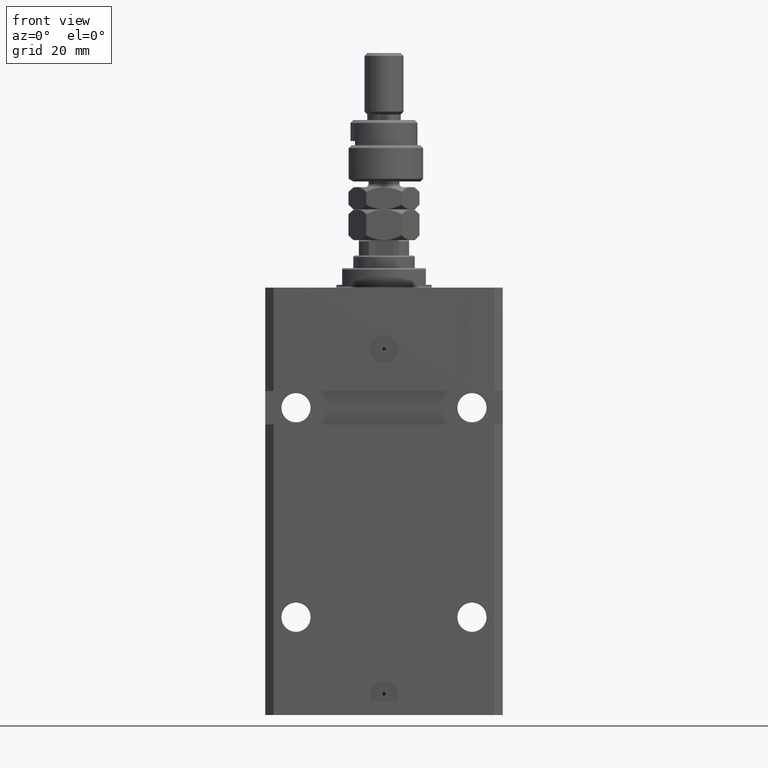
[diagram: clean part render]
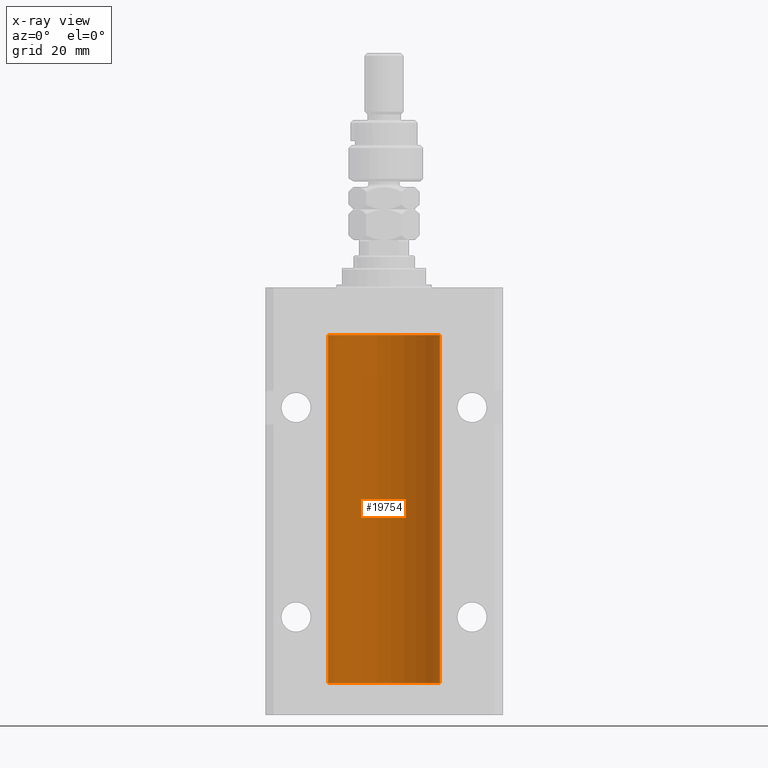
[diagram: x-ray — body ghosted, one internal face saturated and labeled with its STEP entity id]
A machine part, front view, then the same camera in x-ray: the body is ghosted and one INTERNAL B-rep face — a face not visible from any outside direction — is saturated and labeled: STEP entity #19754.
In plain terms, the highlighted cylindrical surface (partial cylindrical patch) has radius 20 mm, axis along (0, 0, 1).
Its self-contained STEP definition (entity closure, byte-faithful):
#153 = EDGE_LOOP ( 'NONE', ( #22952, #13435, #49968, #50057, #42618, #32042, #2248, #34435, #18991, #25160 ) ) ;
#396 = DIRECTION ( 'NONE',  ( 1.000000000000000000, 0.000000000000000000, 0.000000000000000000 ) ) ;
#1191 = CARTESIAN_POINT ( 'NONE',  ( 20.00000000000000000, -1.112928376255647276E-15, -24.62500000000000000 ) ) ;
#1295 = VERTEX_POINT ( 'NONE', #4157 ) ;
#2077 = CARTESIAN_POINT ( 'NONE',  ( 19.99256353007439913, 0.5574106582031163049, -24.32639035180115172 ) ) ;
#2248 = ORIENTED_EDGE ( 'NONE', *, *, #24458, .T. ) ;
#2695 = CIRCLE ( 'NONE', #35631, 20.00000000000000000 ) ;
#2964 = CARTESIAN_POINT ( 'NONE',  ( 19.99766100389833312, 0.3150982863324716665, -139.5459443824127561 ) ) ;
#4157 = CARTESIAN_POINT ( 'NONE',  ( 19.99023198964909298, 0.6250000000081508134, -23.99999999999910472 ) ) ;
#4684 = LINE ( 'NONE', #11923, #26144 ) ;
#4912 = B_SPLINE_CURVE_WITH_KNOTS ( 'NONE', 3,
 ( #14006, #29990, #33840, #10654, #9895, #37696 ),
 .UNSPECIFIED., .F., .F.,
 ( 4, 2, 4 ),
 ( 0.0009772989342736162956, 0.001465726722058837295, 0.001954154509844058078 ),
 .UNSPECIFIED. ) ;
#5544 = VERTEX_POINT ( 'NONE', #43630 ) ;
#6154 = CARTESIAN_POINT ( 'NONE',  ( 20.00000000000010303, 3.555666311577537537E-13, -138.3749999999966178 ) ) ;
#7422 = LINE ( 'NONE', #50728, #44775 ) ;
#8634 = CIRCLE ( 'NONE', #21792, 20.00000000000000000 ) ;
#8811 = DIRECTION ( 'NONE',  ( -0.000000000000000000, -0.000000000000000000, 1.000000000000000000 ) ) ;
#9522 = CARTESIAN_POINT ( 'NONE',  ( 19.99638788807192924, 0.3844440352705415509, -139.4994805898647883 ) ) ;
#9895 = CARTESIAN_POINT ( 'NONE',  ( 19.99999999999999645, 0.1631318418333148335, -23.37500000000016698 ) ) ;
#10330 = CARTESIAN_POINT ( 'NONE',  ( 19.99023198964934522, 0.6250000000002681189, -24.16311014829328840 ) ) ;
#10507 = DIRECTION ( 'NONE',  ( -0.000000000000000000, -0.000000000000000000, 1.000000000000000000 ) ) ;
#10543 = DIRECTION ( 'NONE',  ( 0.000000000000000000, 0.000000000000000000, 1.000000000000000000 ) ) ;
#10654 = CARTESIAN_POINT ( 'NONE',  ( 19.99769474220010679, 0.3253030616682400233, -23.44140633897632142 ) ) ;
#10968 = CARTESIAN_POINT ( 'NONE',  ( 20.00000000000000000, -2.179639976041390721E-15, -139.6249999999999716 ) ) ;
#11559 = DIRECTION ( 'NONE',  ( -0.000000000000000000, -0.000000000000000000, 1.000000000000000000 ) ) ;
#11757 = VERTEX_POINT ( 'NONE', #22809 ) ;
#11923 = CARTESIAN_POINT ( 'NONE',  ( -20.00000000000000000, 2.449293598294706513E-15, -141.5999999999999943 ) ) ;
#12060 = EDGE_CURVE ( 'NONE', #1295, #47004, #4912, .T. ) ;
#13099 = EDGE_CURVE ( 'NONE', #47004, #17605, #7422, .T. ) ;
#13397 = DIRECTION ( 'NONE',  ( 1.000000000000000000, 0.000000000000000000, 0.000000000000000000 ) ) ;
#13435 = ORIENTED_EDGE ( 'NONE', *, *, #14088, .F. ) ;
#14006 = CARTESIAN_POINT ( 'NONE',  ( 19.99023198964909298, 0.6250000000081508134, -23.99999999999910472 ) ) ;
#14088 = EDGE_CURVE ( 'NONE', #11757, #17401, #8634, .T. ) ;
#15935 = CARTESIAN_POINT ( 'NONE',  ( -20.00000000000000000, 2.449293598294706513E-15, -17.00000000000000000 ) ) ;
#16515 = CARTESIAN_POINT ( 'NONE',  ( 19.99999999999999645, 0.1631318418333188858, -138.3750000000001421 ) ) ;
#17203 = CARTESIAN_POINT ( 'NONE',  ( 0.000000000000000000, 0.000000000000000000, -141.5999999999999943 ) ) ;
#17401 = VERTEX_POINT ( 'NONE', #37804 ) ;
#17605 = VERTEX_POINT ( 'NONE', #41112 ) ;
#17683 = DIRECTION ( 'NONE',  ( -0.000000000000000000, -0.000000000000000000, 1.000000000000000000 ) ) ;
#18303 = CARTESIAN_POINT ( 'NONE',  ( 19.99638788807193279, 0.3844440352705381092, -24.49948058986480959 ) ) ;
#18698 = CARTESIAN_POINT ( 'NONE',  ( 20.00000000000000355, 0.08261455565448021232, -139.6249999999999716 ) ) ;
#18991 = ORIENTED_EDGE ( 'NONE', *, *, #13099, .T. ) ;
#19627 = CARTESIAN_POINT ( 'NONE',  ( 19.99023198964935588, 0.6249999999995818900, -138.8369638477980459 ) ) ;
#19754 = ADVANCED_FACE ( 'NONE', ( #21237 ), #24831, .F. ) ;
#21237 = FACE_OUTER_BOUND ( 'NONE', #153, .T. ) ;
#21792 = AXIS2_PLACEMENT_3D ( 'NONE', #17203, #28799, #43747 ) ;
#21908 = CARTESIAN_POINT ( 'NONE',  ( 19.99947351343144319, 0.1636818329565326025, -24.60872855715643936 ) ) ;
#22139 = EDGE_CURVE ( 'NONE', #5544, #25487, #39237, .T. ) ;
#22809 = CARTESIAN_POINT ( 'NONE',  ( 20.00000000000000000, 0.000000000000000000, -141.5999999999999943 ) ) ;
#22952 = ORIENTED_EDGE ( 'NONE', *, *, #22963, .F. ) ;
#22963 = EDGE_CURVE ( 'NONE', #17401, #34540, #4684, .T. ) ;
#24458 = EDGE_CURVE ( 'NONE', #42664, #1295, #42199, .T. ) ;
#24831 = CYLINDRICAL_SURFACE ( 'NONE', #26205, 20.00000000000000000 ) ;
#25160 = ORIENTED_EDGE ( 'NONE', *, *, #37821, .T. ) ;
#25487 = VERTEX_POINT ( 'NONE', #6154 ) ;
#25509 = CARTESIAN_POINT ( 'NONE',  ( 20.00000000000000000, -1.112928376255647276E-15, -24.62500000000000000 ) ) ;
#26021 = CARTESIAN_POINT ( 'NONE',  ( 19.99023198964909298, 0.6250000000081508134, -23.99999999999910472 ) ) ;
#26144 = VECTOR ( 'NONE', #8811, 1000.000000000000000 ) ;
#26205 = AXIS2_PLACEMENT_3D ( 'NONE', #32323, #40292, #396 ) ;
#26673 = CARTESIAN_POINT ( 'NONE',  ( 19.99023198964909298, 0.6250000000081585849, -138.9999999999990621 ) ) ;
#27620 = CARTESIAN_POINT ( 'NONE',  ( 19.99769474220010679, 0.3253030616682487941, -138.4414063389762646 ) ) ;
#27867 = CARTESIAN_POINT ( 'NONE',  ( 19.99253733128256272, 0.5586305947779011127, -138.6747603673525475 ) ) ;
#28057 = CARTESIAN_POINT ( 'NONE',  ( 20.00000000000010303, 3.555666336392955914E-13, -23.37499999999667111 ) ) ;
#28799 = DIRECTION ( 'NONE',  ( 0.000000000000000000, 0.000000000000000000, 1.000000000000000000 ) ) ;
#29236 = VECTOR ( 'NONE', #10507, 1000.000000000000000 ) ;
#29990 = CARTESIAN_POINT ( 'NONE',  ( 19.99023198964935588, 0.6249999999995746736, -23.83696384779806721 ) ) ;
#30089 = CARTESIAN_POINT ( 'NONE',  ( 20.00000000000000000, 0.000000000000000000, -141.5999999999999943 ) ) ;
#32042 = ORIENTED_EDGE ( 'NONE', *, *, #46701, .T. ) ;
#32323 = CARTESIAN_POINT ( 'NONE',  ( 0.000000000000000000, 0.000000000000000000, -141.5999999999999943 ) ) ;
#32703 = CARTESIAN_POINT ( 'NONE',  ( 19.99256353007439202, 0.5574106582031183033, -139.3263903518010522 ) ) ;
#33469 = CARTESIAN_POINT ( 'NONE',  ( 19.99947351343144319, 0.1636818329565261354, -139.6087285571564109 ) ) ;
#33634 = LINE ( 'NONE', #49354, #33816 ) ;
#33816 = VECTOR ( 'NONE', #17683, 1000.000000000000000 ) ;
#33840 = CARTESIAN_POINT ( 'NONE',  ( 19.99253733128256272, 0.5586305947778931191, -23.67476036735258305 ) ) ;
#33979 = CARTESIAN_POINT ( 'NONE',  ( 0.000000000000000000, 0.000000000000000000, -17.00000000000000000 ) ) ;
#34435 = ORIENTED_EDGE ( 'NONE', *, *, #12060, .T. ) ;
#34540 = VERTEX_POINT ( 'NONE', #15935 ) ;
#35631 = AXIS2_PLACEMENT_3D ( 'NONE', #33979, #10543, #13397 ) ;
#37370 = CARTESIAN_POINT ( 'NONE',  ( 19.99766100389833667, 0.3150982863324735539, -24.54594438241279164 ) ) ;
#37696 = CARTESIAN_POINT ( 'NONE',  ( 20.00000000000010303, 3.555666336392955914E-13, -23.37499999999667111 ) ) ;
#37804 = CARTESIAN_POINT ( 'NONE',  ( -20.00000000000000000, 2.449293598294706513E-15, -141.5999999999999943 ) ) ;
#37821 = EDGE_CURVE ( 'NONE', #17605, #34540, #2695, .T. ) ;
#38506 = CARTESIAN_POINT ( 'NONE',  ( 19.99023198964934167, 0.6250000000002770006, -139.1631101482932422 ) ) ;
#38852 = B_SPLINE_CURVE_WITH_KNOTS ( 'NONE', 3,
 ( #10968, #18698, #33469, #2964, #9522, #32703, #38506, #26673 ),
 .UNSPECIFIED., .F., .F.,
 ( 4, 2, 2, 4 ),
 ( 2.118185448276490261E-18, 0.0002443247335684271674, 0.0004886494671368522748, 0.0009772989342736434007 ),
 .UNSPECIFIED. ) ;
#39199 = CARTESIAN_POINT ( 'NONE',  ( 19.99023198964909298, 0.6250000000081585849, -138.9999999999990621 ) ) ;
#39237 = B_SPLINE_CURVE_WITH_KNOTS ( 'NONE', 3,
 ( #39199, #19627, #27867, #27620, #16515, #43329 ),
 .UNSPECIFIED., .F., .F.,
 ( 4, 2, 4 ),
 ( 0.0009772989342736434007, 0.001465726722058881748, 0.001954154509844120095 ),
 .UNSPECIFIED. ) ;
#40292 = DIRECTION ( 'NONE',  ( -0.000000000000000000, -0.000000000000000000, 1.000000000000000000 ) ) ;
#41112 = CARTESIAN_POINT ( 'NONE',  ( 20.00000000000000000, 0.000000000000000000, -17.00000000000000000 ) ) ;
#41229 = CARTESIAN_POINT ( 'NONE',  ( 20.00000000000000000, 0.08261455565447775595, -24.62499999999998224 ) ) ;
#42199 = B_SPLINE_CURVE_WITH_KNOTS ( 'NONE', 3,
 ( #25509, #41229, #21908, #37370, #18303, #2077, #10330, #26021 ),
 .UNSPECIFIED., .F., .F.,
 ( 4, 2, 2, 4 ),
 ( 2.229608604094221016E-18, 0.0002443247335684058086, 0.0004886494671368094489, 0.0009772989342736162956 ),
 .UNSPECIFIED. ) ;
#42336 = VERTEX_POINT ( 'NONE', #48393 ) ;
#42467 = EDGE_CURVE ( 'NONE', #11757, #42336, #48913, .T. ) ;
#42618 = ORIENTED_EDGE ( 'NONE', *, *, #22139, .T. ) ;
#42664 = VERTEX_POINT ( 'NONE', #1191 ) ;
#43329 = CARTESIAN_POINT ( 'NONE',  ( 20.00000000000010303, 3.555666311577537537E-13, -138.3749999999966178 ) ) ;
#43630 = CARTESIAN_POINT ( 'NONE',  ( 19.99023198964909298, 0.6250000000081585849, -138.9999999999990621 ) ) ;
#43747 = DIRECTION ( 'NONE',  ( 1.000000000000000000, 0.000000000000000000, 0.000000000000000000 ) ) ;
#44775 = VECTOR ( 'NONE', #11559, 1000.000000000000000 ) ;
#46701 = EDGE_CURVE ( 'NONE', #25487, #42664, #33634, .T. ) ;
#47004 = VERTEX_POINT ( 'NONE', #28057 ) ;
#48393 = CARTESIAN_POINT ( 'NONE',  ( 20.00000000000000000, -2.179639976041390721E-15, -139.6249999999999716 ) ) ;
#48413 = EDGE_CURVE ( 'NONE', #42336, #5544, #38852, .T. ) ;
#48913 = LINE ( 'NONE', #30089, #29236 ) ;
#49354 = CARTESIAN_POINT ( 'NONE',  ( 20.00000000000000000, 0.000000000000000000, -141.5999999999999943 ) ) ;
#49968 = ORIENTED_EDGE ( 'NONE', *, *, #42467, .T. ) ;
#50057 = ORIENTED_EDGE ( 'NONE', *, *, #48413, .T. ) ;
#50728 = CARTESIAN_POINT ( 'NONE',  ( 20.00000000000000000, 0.000000000000000000, -141.5999999999999943 ) ) ;